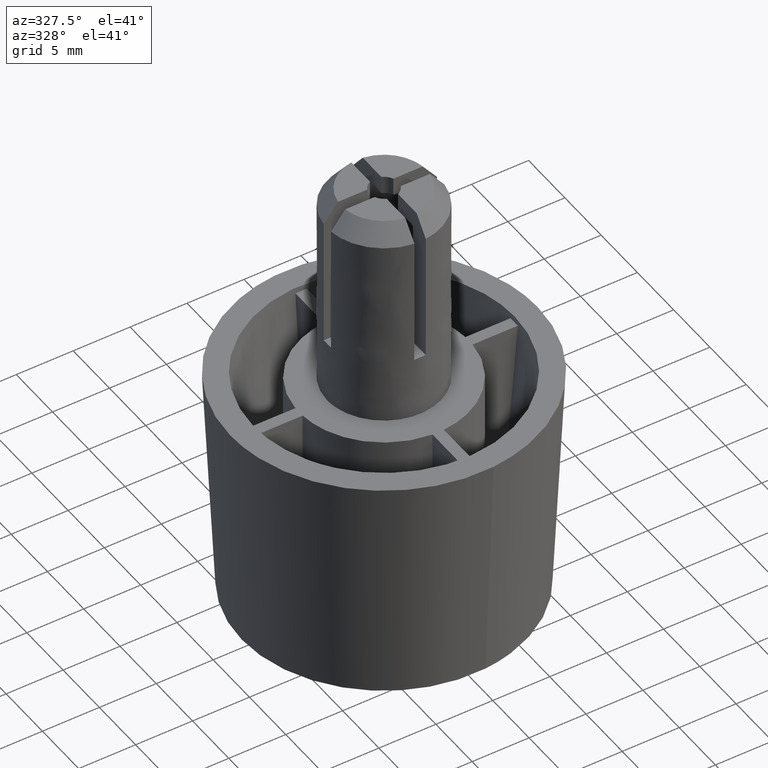
[diagram: clean part render]
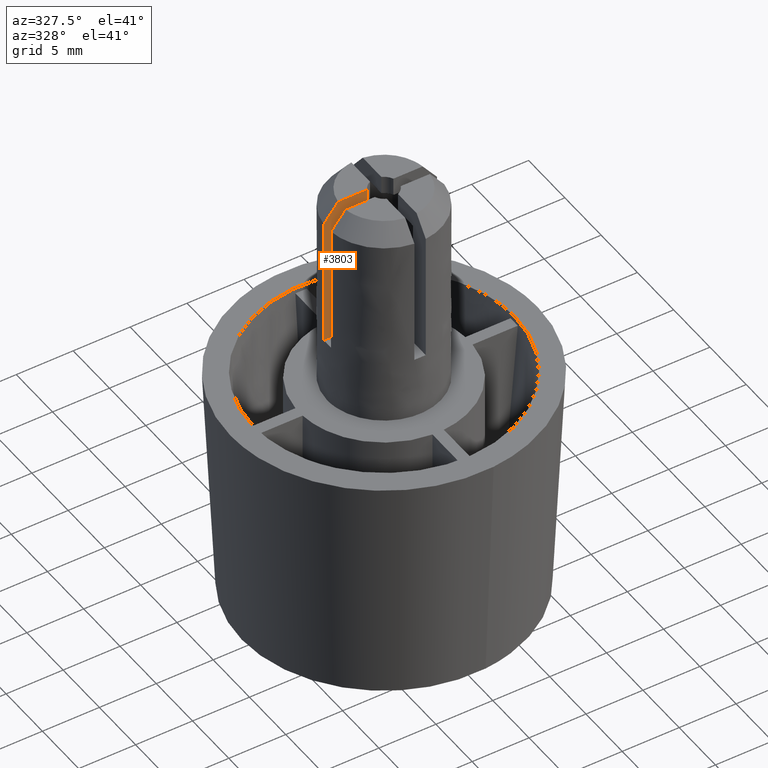
[diagram: same view with one face highlighted and labeled with its STEP entity id]
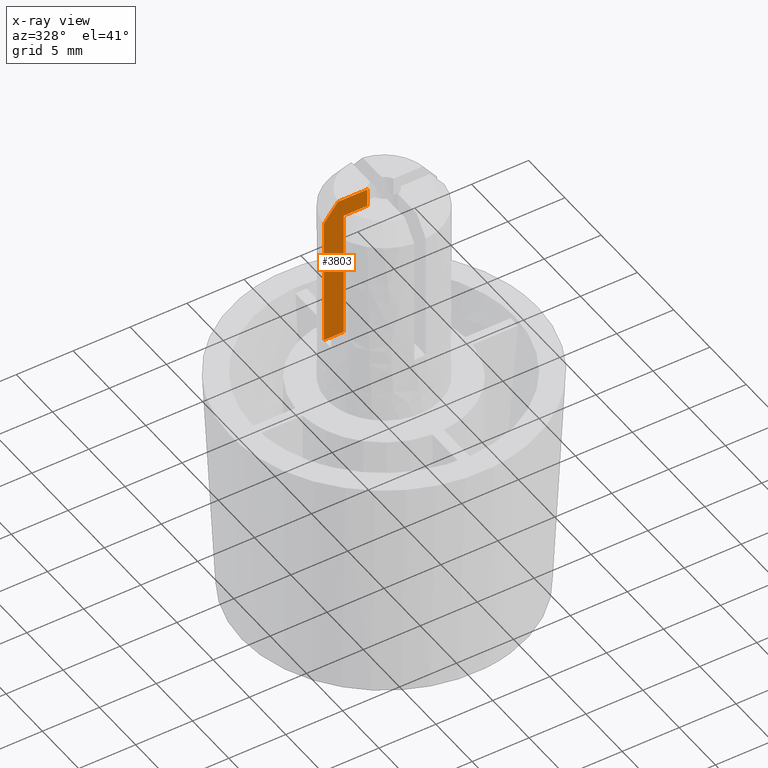
[diagram: x-ray of the same camera — body ghosted, the highlighted face saturated]
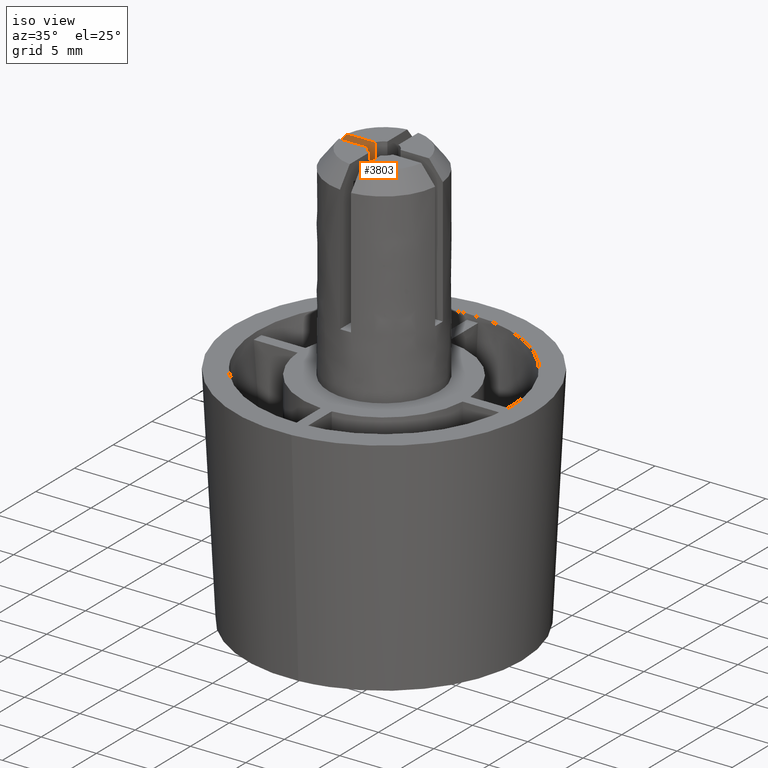
[diagram: same view with one face highlighted and labeled with its STEP entity id]
A machine part, auxiliary view. The second image highlights one B-rep face of the part: STEP entity #3803.
The next image is the same camera in x-ray: the body ghosted, the highlighted face saturated — about 0% of this face is hidden behind the body in this view.
A second angle (iso view) of the same face is appended — the face is thin or edge-on in the first view.
In plain terms, the highlighted face is a freeform B-spline surface patch.
Its self-contained STEP definition (entity closure, byte-faithful):
#1755=CARTESIAN_POINT('',(-3.211308144666285,0.500000000000000,16.399999999999999));
#1756=VERTEX_POINT('',#1755);
#1770=CARTESIAN_POINT('',(-3.211308144666285,0.500000000000000,5.0));
#1771=VERTEX_POINT('',#1770);
#1772=CARTESIAN_POINT('',(-3.211308144666285,0.500000000000000,5.0));
#1773=CARTESIAN_POINT('',(-3.211308144666285,0.500000000000000,16.399999999999999));
#1774=QUASI_UNIFORM_CURVE('',1,(#1772,#1773),.UNSPECIFIED.,.F.,.U.);
#1775=EDGE_CURVE('',#1771,#1756,#1774,.T.);
#2347=CARTESIAN_POINT('',(-4.974937185533100,0.500000000000000,5.0));
#2348=VERTEX_POINT('',#2347);
#2362=CARTESIAN_POINT('',(-4.974937185533100,0.500000000000000,16.399999999999999));
#2363=VERTEX_POINT('',#2362);
#2364=CARTESIAN_POINT('',(-4.974937185533100,0.500000000000000,5.0));
#2365=CARTESIAN_POINT('',(-4.974937185533100,0.500000000000000,16.399999999999999));
#2366=QUASI_UNIFORM_CURVE('',1,(#2364,#2365),.UNSPECIFIED.,.F.,.U.);
#2367=EDGE_CURVE('',#2348,#2363,#2366,.T.);
#3444=CARTESIAN_POINT('',(-1.145643927912056,0.499999990438235,18.0));
#3445=VERTEX_POINT('',#3444);
#3459=CARTESIAN_POINT('',(-1.145643923738978,0.500000000000000,16.399999999999999));
#3460=VERTEX_POINT('',#3459);
#3461=CARTESIAN_POINT('',(-1.145643923738978,0.500000000000000,16.399999999999999));
#3462=CARTESIAN_POINT('',(-1.145643927912056,0.499999990438235,18.0));
#3463=QUASI_UNIFORM_CURVE('',1,(#3461,#3462),.UNSPECIFIED.,.F.,.U.);
#3464=EDGE_CURVE('',#3460,#3445,#3463,.T.);
#3658=CARTESIAN_POINT('',(-1.145643923738978,0.500000000000000,16.399999999999999));
#3659=CARTESIAN_POINT('',(-3.211308144666285,0.500000000000000,16.399999999999999));
#3660=QUASI_UNIFORM_CURVE('',1,(#3658,#3659),.UNSPECIFIED.,.F.,.U.);
#3661=EDGE_CURVE('',#3460,#1756,#3660,.T.);
#3773=CARTESIAN_POINT('',(-5.166210160857811,0.500000000000000,4.350650025196522));
#3774=CARTESIAN_POINT('',(-5.166210160857811,0.500000000000000,18.649350323490651));
#3775=CARTESIAN_POINT('',(-0.954370640285321,0.500000000000000,4.350650025196522));
#3776=CARTESIAN_POINT('',(-0.954370640285321,0.500000000000000,18.649350323490651));
#3777=B_SPLINE_SURFACE_WITH_KNOTS('',1,1,((#3773,#3775),(#3774,#3776)),.UNSPECIFIED.,.F.,.F.,.U.,(2,2),(2,2),(0.0,14.298700298294129),(0.0,4.211839520572490),.UNSPECIFIED.);
#3778=ORIENTED_EDGE('',*,*,#3661,.F.);
#3779=ORIENTED_EDGE('',*,*,#3464,.T.);
#3780=CARTESIAN_POINT('',(-3.716517186829625,0.500000000000000,18.0));
#3781=VERTEX_POINT('',#3780);
#3782=CARTESIAN_POINT('',(-3.716517186829625,0.500000000000000,18.0));
#3783=CARTESIAN_POINT('',(-1.145643927912056,0.499999990438235,18.0));
#3784=QUASI_UNIFORM_CURVE('',1,(#3782,#3783),.UNSPECIFIED.,.F.,.U.);
#3785=EDGE_CURVE('',#3781,#3445,#3784,.T.);
#3786=ORIENTED_EDGE('',*,*,#3785,.F.);
#3787=CARTESIAN_POINT('',(-4.974937185533100,0.500000000000000,16.399999999999999));
#3788=CARTESIAN_POINT('',(-4.555900347592020,0.500000000000000,16.933678578478538));
#3789=CARTESIAN_POINT('',(-4.136571331631046,0.500000000000000,17.467131409560469));
#3790=CARTESIAN_POINT('',(-3.716517186829626,0.500000000000000,18.0));
#3791=QUASI_UNIFORM_CURVE('',3,(#3787,#3788,#3789,#3790),.UNSPECIFIED.,.F.,.U.);
#3792=EDGE_CURVE('',#2363,#3781,#3791,.T.);
#3793=ORIENTED_EDGE('',*,*,#3792,.F.);
#3794=ORIENTED_EDGE('',*,*,#2367,.F.);
#3795=CARTESIAN_POINT('',(-4.974937185533100,0.500000000000000,5.0));
#3796=CARTESIAN_POINT('',(-3.211308144666285,0.500000000000000,5.0));
#3797=QUASI_UNIFORM_CURVE('',1,(#3795,#3796),.UNSPECIFIED.,.F.,.U.);
#3798=EDGE_CURVE('',#2348,#1771,#3797,.T.);
#3799=ORIENTED_EDGE('',*,*,#3798,.T.);
#3800=ORIENTED_EDGE('',*,*,#1775,.T.);
#3801=EDGE_LOOP('',(#3778,#3779,#3786,#3793,#3794,#3799,#3800));
#3802=FACE_OUTER_BOUND('',#3801,.T.);
#3803=ADVANCED_FACE('',(#3802),#3777,.F.);